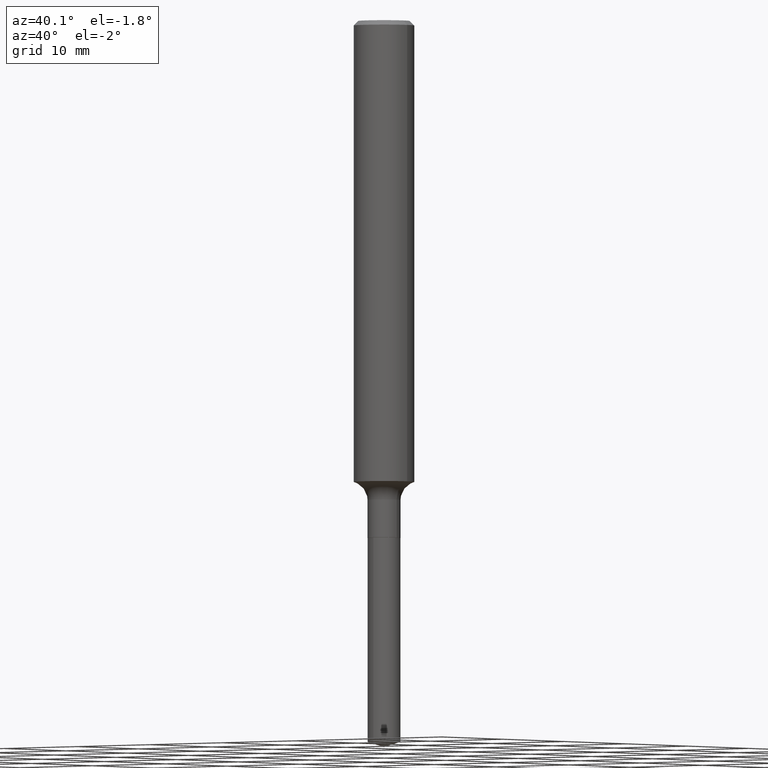
[diagram: clean part render]
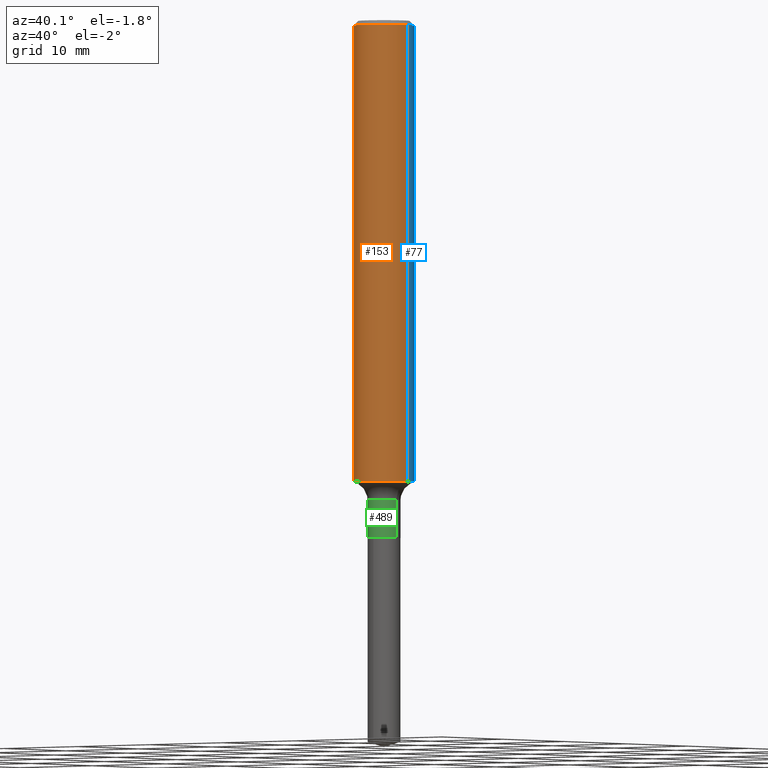
[diagram: same view with three faces highlighted in distinct colors, each labeled with its STEP entity id]
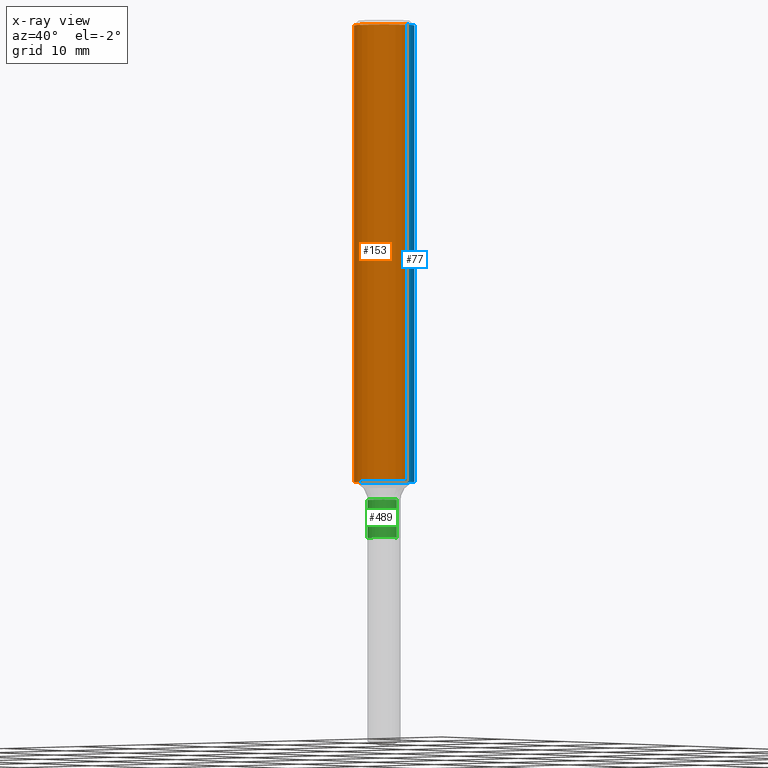
[diagram: x-ray of the same camera — body ghosted, the three highlighted faces saturated]
A machine part, auxiliary view with three faces highlighted in distinct colors.
The next image is the same camera in x-ray (body ghosted, the three faces saturated) — at least one of them is partly hidden behind the body in this view.
Their STEP definitions:

[orange] entity #153 — the highlighted cylindrical surface (edge-blend (fillet) strip) has radius 3.175 mm, axis along (-0, 0, 1).
#13 = CARTESIAN_POINT ( 'NONE',  ( -0.1250000000000001110, 8.881784197001260212E-16, -6.148668862818637832E-30 ) ) ;
#21 = AXIS2_PLACEMENT_3D ( 'NONE', #138, #216, #332 ) ;
#22 = AXIS2_PLACEMENT_3D ( 'NONE', #393, #55, #471 ) ;
#30 = CIRCLE ( 'NONE', #21, 0.1250000000000002498 ) ;
#36 = VECTOR ( 'NONE', #174, 39.37007874015748143 ) ;
#55 = DIRECTION ( 'NONE',  ( -2.445468806185136597E-29, 3.491481338843145583E-15, 1.000000000000000000 ) ) ;
#97 = LINE ( 'NONE', #252, #168 ) ;
#101 = DIRECTION ( 'NONE',  ( -2.445468806185136877E-29, 3.491481338843145188E-15, 1.000000000000000000 ) ) ;
#125 = EDGE_CURVE ( 'NONE', #466, #442, #30, .T. ) ;
#130 = LINE ( 'NONE', #13, #36 ) ;
#138 = CARTESIAN_POINT ( 'NONE',  ( 4.657346666393600377E-29, -6.649456714846982657E-15, -1.904480095846706744 ) ) ;
#146 = CARTESIAN_POINT ( 'NONE',  ( -0.1250000000000000000, -2.469282575275018302E-15, -0.01875000000000014155 ) ) ;
#153 = ADVANCED_FACE ( 'NONE', ( #180 ), #187, .T. ) ;
#155 = VERTEX_POINT ( 'NONE', #146 ) ;
#168 = VECTOR ( 'NONE', #101, 39.37007874015748143 ) ;
#174 = DIRECTION ( 'NONE',  ( -2.445468806185136877E-29, 3.491481338843145188E-15, 1.000000000000000000 ) ) ;
#180 = FACE_OUTER_BOUND ( 'NONE', #472, .T. ) ;
#187 = CYLINDRICAL_SURFACE ( 'NONE', #219, 0.1250000000000001110 ) ;
#191 = VERTEX_POINT ( 'NONE', #365 ) ;
#205 = EDGE_CURVE ( 'NONE', #155, #191, #491, .T. ) ;
#216 = DIRECTION ( 'NONE',  ( -2.445468806185136597E-29, 3.491481338843145583E-15, 1.000000000000000000 ) ) ;
#219 = AXIS2_PLACEMENT_3D ( 'NONE', #321, #464, #403 ) ;
#227 = CARTESIAN_POINT ( 'NONE',  ( 0.1250000000000002220, -7.522327049557765996E-15, -1.904480095846706744 ) ) ;
#228 = EDGE_CURVE ( 'NONE', #442, #191, #97, .T. ) ;
#252 = CARTESIAN_POINT ( 'NONE',  ( 0.1250000000000001110, -8.728703347107842263E-16, 6.095220969744926047E-30 ) ) ;
#258 = CARTESIAN_POINT ( 'NONE',  ( -0.1250000000000002220, -5.761278295146855058E-15, -1.904480095846706744 ) ) ;
#321 = CARTESIAN_POINT ( 'NONE',  ( 0.000000000000000000, 0.000000000000000000, 0.000000000000000000 ) ) ;
#332 = DIRECTION ( 'NONE',  ( 1.000000000000000000, -6.982962677686264344E-15, 0.000000000000000000 ) ) ;
#333 = ORIENTED_EDGE ( 'NONE', *, *, #411, .F. ) ;
#336 = ORIENTED_EDGE ( 'NONE', *, *, #125, .T. ) ;
#365 = CARTESIAN_POINT ( 'NONE',  ( 0.1250000000000000000, -9.383356098140928781E-16, -0.01875000000000014155 ) ) ;
#393 = CARTESIAN_POINT ( 'NONE',  ( 4.585254011597165626E-31, -6.546527510330947764E-17, -0.01875000000000014155 ) ) ;
#403 = DIRECTION ( 'NONE',  ( 1.000000000000000000, -6.982962677686267499E-15, 4.876176775795936353E-29 ) ) ;
#411 = EDGE_CURVE ( 'NONE', #466, #155, #130, .T. ) ;
#442 = VERTEX_POINT ( 'NONE', #227 ) ;
#444 = ORIENTED_EDGE ( 'NONE', *, *, #228, .T. ) ;
#464 = DIRECTION ( 'NONE',  ( -2.445468806185136597E-29, 3.491481338843145583E-15, 1.000000000000000000 ) ) ;
#466 = VERTEX_POINT ( 'NONE', #258 ) ;
#471 = DIRECTION ( 'NONE',  ( 1.000000000000000000, -6.982962677686266711E-15, 0.000000000000000000 ) ) ;
#472 = EDGE_LOOP ( 'NONE', ( #333, #336, #444, #473 ) ) ;
#473 = ORIENTED_EDGE ( 'NONE', *, *, #205, .F. ) ;
#491 = CIRCLE ( 'NONE', #22, 0.1250000000000000000 ) ;

[blue] entity #77 — the highlighted cylindrical surface (edge-blend (fillet) strip) has radius 3.175 mm, axis along (-0, 0, 1).
#13 = CARTESIAN_POINT ( 'NONE',  ( -0.1250000000000001110, 8.881784197001260212E-16, -6.148668862818637832E-30 ) ) ;
#14 = DIRECTION ( 'NONE',  ( 1.000000000000000000, -6.982962677686266711E-15, 0.000000000000000000 ) ) ;
#36 = VECTOR ( 'NONE', #174, 39.37007874015748143 ) ;
#57 = DIRECTION ( 'NONE',  ( 1.000000000000000000, -6.982962677686264344E-15, 0.000000000000000000 ) ) ;
#59 = ORIENTED_EDGE ( 'NONE', *, *, #346, .T. ) ;
#77 = ADVANCED_FACE ( 'NONE', ( #360 ), #255, .T. ) ;
#85 = CIRCLE ( 'NONE', #129, 0.1250000000000002498 ) ;
#86 = EDGE_CURVE ( 'NONE', #191, #155, #148, .T. ) ;
#97 = LINE ( 'NONE', #252, #168 ) ;
#101 = DIRECTION ( 'NONE',  ( -2.445468806185136877E-29, 3.491481338843145188E-15, 1.000000000000000000 ) ) ;
#129 = AXIS2_PLACEMENT_3D ( 'NONE', #279, #392, #57 ) ;
#130 = LINE ( 'NONE', #13, #36 ) ;
#142 = DIRECTION ( 'NONE',  ( -2.445468806185136597E-29, 3.491481338843145583E-15, 1.000000000000000000 ) ) ;
#146 = CARTESIAN_POINT ( 'NONE',  ( -0.1250000000000000000, -2.469282575275018302E-15, -0.01875000000000014155 ) ) ;
#148 = CIRCLE ( 'NONE', #412, 0.1250000000000000000 ) ;
#155 = VERTEX_POINT ( 'NONE', #146 ) ;
#168 = VECTOR ( 'NONE', #101, 39.37007874015748143 ) ;
#174 = DIRECTION ( 'NONE',  ( -2.445468806185136877E-29, 3.491481338843145188E-15, 1.000000000000000000 ) ) ;
#191 = VERTEX_POINT ( 'NONE', #365 ) ;
#225 = ORIENTED_EDGE ( 'NONE', *, *, #86, .F. ) ;
#227 = CARTESIAN_POINT ( 'NONE',  ( 0.1250000000000002220, -7.522327049557765996E-15, -1.904480095846706744 ) ) ;
#228 = EDGE_CURVE ( 'NONE', #442, #191, #97, .T. ) ;
#252 = CARTESIAN_POINT ( 'NONE',  ( 0.1250000000000001110, -8.728703347107842263E-16, 6.095220969744926047E-30 ) ) ;
#255 = CYLINDRICAL_SURFACE ( 'NONE', #335, 0.1250000000000001110 ) ;
#258 = CARTESIAN_POINT ( 'NONE',  ( -0.1250000000000002220, -5.761278295146855058E-15, -1.904480095846706744 ) ) ;
#279 = CARTESIAN_POINT ( 'NONE',  ( 4.657346666393600377E-29, -6.649456714846982657E-15, -1.904480095846706744 ) ) ;
#280 = CARTESIAN_POINT ( 'NONE',  ( 4.585254011597165626E-31, -6.546527510330947764E-17, -0.01875000000000014155 ) ) ;
#302 = ORIENTED_EDGE ( 'NONE', *, *, #228, .F. ) ;
#335 = AXIS2_PLACEMENT_3D ( 'NONE', #422, #142, #395 ) ;
#346 = EDGE_CURVE ( 'NONE', #442, #466, #85, .T. ) ;
#360 = FACE_OUTER_BOUND ( 'NONE', #404, .T. ) ;
#365 = CARTESIAN_POINT ( 'NONE',  ( 0.1250000000000000000, -9.383356098140928781E-16, -0.01875000000000014155 ) ) ;
#372 = ORIENTED_EDGE ( 'NONE', *, *, #411, .T. ) ;
#391 = DIRECTION ( 'NONE',  ( -2.445468806185136597E-29, 3.491481338843145583E-15, 1.000000000000000000 ) ) ;
#392 = DIRECTION ( 'NONE',  ( -2.445468806185136597E-29, 3.491481338843145583E-15, 1.000000000000000000 ) ) ;
#395 = DIRECTION ( 'NONE',  ( 1.000000000000000000, -6.982962677686267499E-15, 4.876176775795936353E-29 ) ) ;
#404 = EDGE_LOOP ( 'NONE', ( #59, #372, #225, #302 ) ) ;
#411 = EDGE_CURVE ( 'NONE', #466, #155, #130, .T. ) ;
#412 = AXIS2_PLACEMENT_3D ( 'NONE', #280, #391, #14 ) ;
#422 = CARTESIAN_POINT ( 'NONE',  ( 0.000000000000000000, 0.000000000000000000, 0.000000000000000000 ) ) ;
#442 = VERTEX_POINT ( 'NONE', #227 ) ;
#466 = VERTEX_POINT ( 'NONE', #258 ) ;

[green] entity #489 — the highlighted cylindrical surface (edge-blend (fillet) strip) has radius 1.7272 mm, axis along (-0, 0, 1).
#5 = VECTOR ( 'NONE', #145, 39.37007874015748143 ) ;
#7 = CARTESIAN_POINT ( 'NONE',  ( 0.06800000000000000488, -7.930899861182205468E-15, -2.135500000000000398 ) ) ;
#19 = CARTESIAN_POINT ( 'NONE',  ( 0.06799999999999999101, -4.748414620826661284E-16, 3.315800207541236003E-30 ) ) ;
#24 = DIRECTION ( 'NONE',  ( 1.000000000000000000, -6.982962677686260400E-15, 0.000000000000000000 ) ) ;
#32 = VERTEX_POINT ( 'NONE', #7 ) ;
#33 = EDGE_LOOP ( 'NONE', ( #147, #285, #112, #468 ) ) ;
#34 = VERTEX_POINT ( 'NONE', #308 ) ;
#37 = AXIS2_PLACEMENT_3D ( 'NONE', #169, #283, #24 ) ;
#95 = VERTEX_POINT ( 'NONE', #278 ) ;
#112 = ORIENTED_EDGE ( 'NONE', *, *, #431, .T. ) ;
#121 = DIRECTION ( 'NONE',  ( -2.445468806185136597E-29, 3.491481338843145583E-15, 1.000000000000000000 ) ) ;
#145 = DIRECTION ( 'NONE',  ( -2.445468806185136877E-29, 3.491481338843145188E-15, 1.000000000000000000 ) ) ;
#147 = ORIENTED_EDGE ( 'NONE', *, *, #448, .F. ) ;
#157 = CYLINDRICAL_SURFACE ( 'NONE', #478, 0.06799999999999999101 ) ;
#169 = CARTESIAN_POINT ( 'NONE',  ( 5.222298635608360736E-29, -7.456058399099539143E-15, -2.135500000000000398 ) ) ;
#196 = CARTESIAN_POINT ( 'NONE',  ( 0.000000000000000000, 0.000000000000000000, 0.000000000000000000 ) ) ;
#199 = VECTOR ( 'NONE', #470, 39.37007874015748143 ) ;
#213 = CARTESIAN_POINT ( 'NONE',  ( 4.841050048724097207E-29, -6.911736458373892242E-15, -1.979600000000000470 ) ) ;
#226 = EDGE_CURVE ( 'NONE', #95, #34, #303, .T. ) ;
#254 = LINE ( 'NONE', #19, #199 ) ;
#270 = EDGE_CURVE ( 'NONE', #362, #32, #417, .T. ) ;
#278 = CARTESIAN_POINT ( 'NONE',  ( -0.06799999999999997713, -6.700728368419848320E-15, -1.979600000000000470 ) ) ;
#283 = DIRECTION ( 'NONE',  ( -2.445468806185136597E-29, 3.491481338843145583E-15, 1.000000000000000000 ) ) ;
#285 = ORIENTED_EDGE ( 'NONE', *, *, #270, .T. ) ;
#303 = CIRCLE ( 'NONE', #386, 0.06799999999999997713 ) ;
#308 = CARTESIAN_POINT ( 'NONE',  ( 0.06799999999999997713, -7.386577920456557779E-15, -1.979600000000000470 ) ) ;
#362 = VERTEX_POINT ( 'NONE', #459 ) ;
#380 = CARTESIAN_POINT ( 'NONE',  ( -0.06799999999999999101, 4.831690603168680625E-16, -3.344875861373335354E-30 ) ) ;
#386 = AXIS2_PLACEMENT_3D ( 'NONE', #213, #427, #432 ) ;
#387 = DIRECTION ( 'NONE',  ( 1.000000000000000000, -6.982962677686267499E-15, 4.876176775795935793E-29 ) ) ;
#417 = CIRCLE ( 'NONE', #37, 0.06800000000000000488 ) ;
#427 = DIRECTION ( 'NONE',  ( -2.445468806185136597E-29, 3.491481338843145583E-15, 1.000000000000000000 ) ) ;
#431 = EDGE_CURVE ( 'NONE', #32, #34, #254, .T. ) ;
#432 = DIRECTION ( 'NONE',  ( 1.000000000000000000, -6.982962677686262766E-15, 0.000000000000000000 ) ) ;
#448 = EDGE_CURVE ( 'NONE', #362, #95, #482, .T. ) ;
#459 = CARTESIAN_POINT ( 'NONE',  ( -0.06800000000000000488, -6.700728368419848320E-15, -2.135500000000000398 ) ) ;
#468 = ORIENTED_EDGE ( 'NONE', *, *, #226, .F. ) ;
#470 = DIRECTION ( 'NONE',  ( -2.445468806185136877E-29, 3.491481338843145188E-15, 1.000000000000000000 ) ) ;
#478 = AXIS2_PLACEMENT_3D ( 'NONE', #196, #121, #387 ) ;
#482 = LINE ( 'NONE', #380, #5 ) ;
#488 = FACE_OUTER_BOUND ( 'NONE', #33, .T. ) ;
#489 = ADVANCED_FACE ( 'NONE', ( #488 ), #157, .T. ) ;